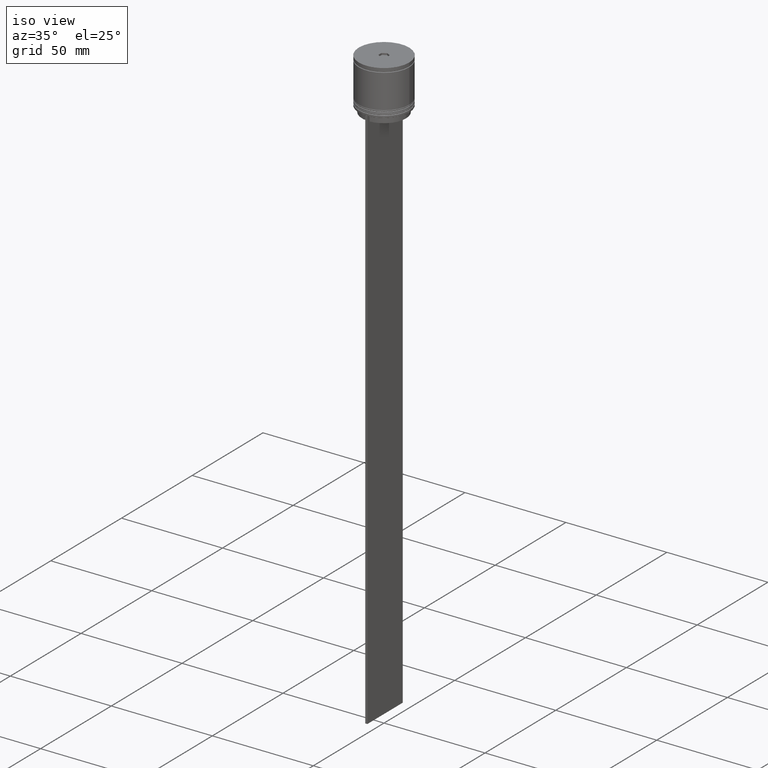
[diagram: clean part render]
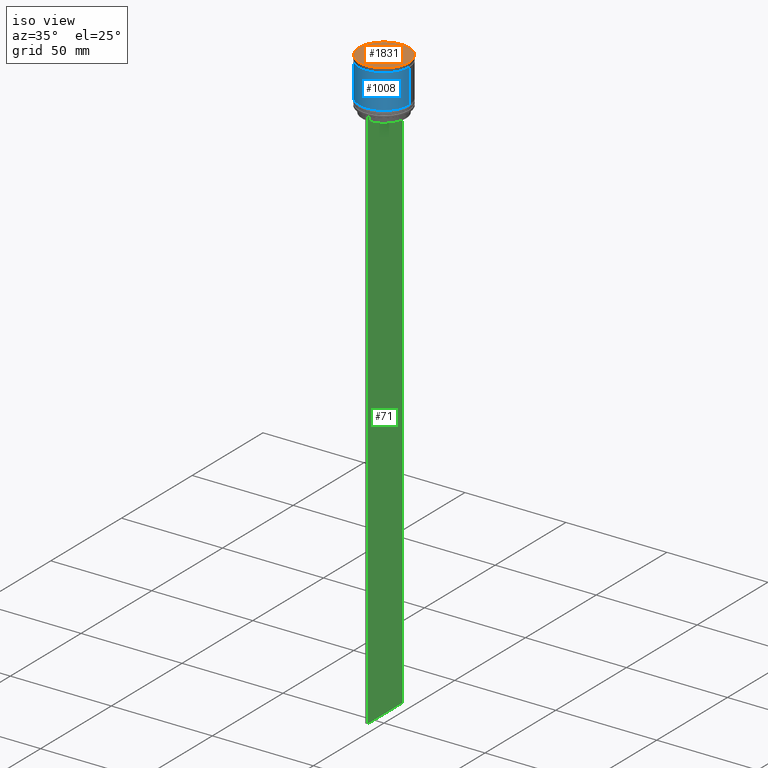
[diagram: same view with three faces highlighted in distinct colors, each labeled with its STEP entity id]
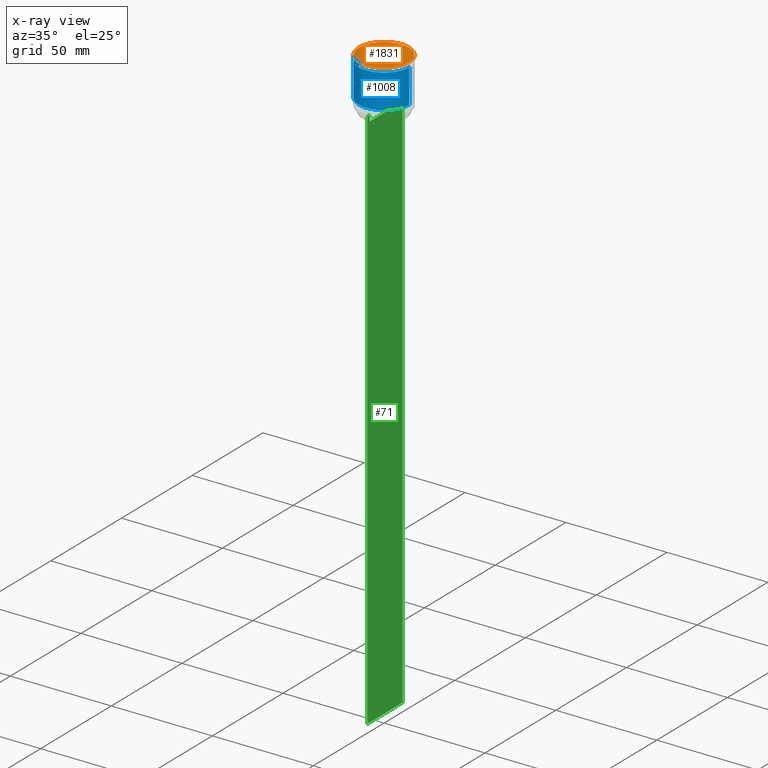
[diagram: x-ray of the same camera — body ghosted, the three highlighted faces saturated]
A machine part, iso view with three faces highlighted in distinct colors.
The next image is the same camera in x-ray (body ghosted, the three faces saturated) — at least one of them is partly hidden behind the body in this view.
Their STEP definitions:

[orange] entity #1831 — the highlighted planar face has unit normal (0, -0, 1).
#5 = EDGE_LOOP ( 'NONE', ( #1208, #28 ) ) ;
#15 = DIRECTION ( 'NONE',  ( -0.8660254037844388186, 0.4999999999999997780, 0.000000000000000000 ) ) ;
#28 = ORIENTED_EDGE ( 'NONE', *, *, #2033, .T. ) ;
#35 = VERTEX_POINT ( 'NONE', #512 ) ;
#76 = DIRECTION ( 'NONE',  ( 0.8660254037844387076, 0.4999999999999998890, 0.000000000000000000 ) ) ;
#84 = CARTESIAN_POINT ( 'NONE',  ( -2.099999999999976552, -1.212435565298201068, 0.000000000000000000 ) ) ;
#95 = CIRCLE ( 'NONE', #443, 12.39999999999999858 ) ;
#102 = CARTESIAN_POINT ( 'NONE',  ( 4.094594143581926364E-16, -2.424871130596400803, 0.000000000000000000 ) ) ;
#112 = EDGE_CURVE ( 'NONE', #371, #598, #947, .T. ) ;
#155 = DIRECTION ( 'NONE',  ( 1.000000000000000000, 0.000000000000000000, 0.000000000000000000 ) ) ;
#169 = CARTESIAN_POINT ( 'NONE',  ( -2.099999999999976552, 1.154700538379251018, 0.000000000000000000 ) ) ;
#177 = DIRECTION ( 'NONE',  ( -0.000000000000000000, -0.000000000000000000, 1.000000000000000000 ) ) ;
#186 = VERTEX_POINT ( 'NONE', #1166 ) ;
#188 = DIRECTION ( 'NONE',  ( 1.000000000000000000, 0.000000000000000000, 0.000000000000000000 ) ) ;
#206 = EDGE_CURVE ( 'NONE', #1710, #186, #1266, .T. ) ;
#244 = CARTESIAN_POINT ( 'NONE',  ( 12.39999999999999858, 0.000000000000000000, 0.000000000000000000 ) ) ;
#305 = CARTESIAN_POINT ( 'NONE',  ( 2.099999999999976552, -1.212435565298200180, 0.000000000000000000 ) ) ;
#320 = LINE ( 'NONE', #1135, #1148 ) ;
#368 = EDGE_CURVE ( 'NONE', #186, #1873, #1039, .T. ) ;
#371 = VERTEX_POINT ( 'NONE', #244 ) ;
#376 = VERTEX_POINT ( 'NONE', #84 ) ;
#438 = VECTOR ( 'NONE', #1494, 999.9999999999998863 ) ;
#443 = AXIS2_PLACEMENT_3D ( 'NONE', #1503, #1823, #540 ) ;
#459 = VECTOR ( 'NONE', #1255, 1000.000000000000000 ) ;
#461 = VECTOR ( 'NONE', #912, 1000.000000000000000 ) ;
#512 = CARTESIAN_POINT ( 'NONE',  ( -2.099999999999976552, 1.212435565298199958, 0.000000000000000000 ) ) ;
#540 = DIRECTION ( 'NONE',  ( 1.000000000000000000, 0.000000000000000000, 0.000000000000000000 ) ) ;
#563 = CARTESIAN_POINT ( 'NONE',  ( 2.099999999999976552, -1.154700538379251684, 0.000000000000000000 ) ) ;
#598 = VERTEX_POINT ( 'NONE', #1916 ) ;
#634 = FACE_BOUND ( 'NONE', #834, .T. ) ;
#658 = DIRECTION ( 'NONE',  ( 0.000000000000000000, -0.000000000000000000, 1.000000000000000000 ) ) ;
#681 = FACE_OUTER_BOUND ( 'NONE', #5, .T. ) ;
#732 = EDGE_CURVE ( 'NONE', #1873, #1773, #1348, .T. ) ;
#834 = EDGE_LOOP ( 'NONE', ( #1289, #1958, #917, #961, #1037, #1005 ) ) ;
#912 = DIRECTION ( 'NONE',  ( 0.000000000000000000, -1.000000000000000000, 0.000000000000000000 ) ) ;
#917 = ORIENTED_EDGE ( 'NONE', *, *, #1904, .T. ) ;
#947 = CIRCLE ( 'NONE', #1507, 12.39999999999999858 ) ;
#961 = ORIENTED_EDGE ( 'NONE', *, *, #1124, .T. ) ;
#1005 = ORIENTED_EDGE ( 'NONE', *, *, #368, .T. ) ;
#1037 = ORIENTED_EDGE ( 'NONE', *, *, #206, .T. ) ;
#1039 = LINE ( 'NONE', #563, #461 ) ;
#1047 = EDGE_CURVE ( 'NONE', #1773, #376, #320, .T. ) ;
#1064 = LINE ( 'NONE', #1376, #1412 ) ;
#1124 = EDGE_CURVE ( 'NONE', #35, #1710, #1064, .T. ) ;
#1135 = CARTESIAN_POINT ( 'NONE',  ( -2.049999999999987832, -1.241303078757675538, 0.000000000000000000 ) ) ;
#1140 = LINE ( 'NONE', #169, #1810 ) ;
#1148 = VECTOR ( 'NONE', #15, 1000.000000000000114 ) ;
#1166 = CARTESIAN_POINT ( 'NONE',  ( 2.099999999999976552, 1.212435565298200180, 0.000000000000000000 ) ) ;
#1167 = CARTESIAN_POINT ( 'NONE',  ( 0.000000000000000000, 0.000000000000000000, 0.000000000000000000 ) ) ;
#1208 = ORIENTED_EDGE ( 'NONE', *, *, #112, .T. ) ;
#1255 = DIRECTION ( 'NONE',  ( 0.8660254037844387076, -0.4999999999999998890, 0.000000000000000000 ) ) ;
#1266 = LINE ( 'NONE', #1924, #459 ) ;
#1289 = ORIENTED_EDGE ( 'NONE', *, *, #732, .T. ) ;
#1306 = DIRECTION ( 'NONE',  ( 0.000000000000000000, 1.000000000000000000, 0.000000000000000000 ) ) ;
#1348 = LINE ( 'NONE', #1796, #438 ) ;
#1376 = CARTESIAN_POINT ( 'NONE',  ( -0.04999999999998829686, 2.396003617136925445, 0.000000000000000000 ) ) ;
#1412 = VECTOR ( 'NONE', #76, 1000.000000000000000 ) ;
#1465 = CARTESIAN_POINT ( 'NONE',  ( 0.000000000000000000, 0.000000000000000000, 0.000000000000000000 ) ) ;
#1483 = AXIS2_PLACEMENT_3D ( 'NONE', #1465, #658, #155 ) ;
#1494 = DIRECTION ( 'NONE',  ( -0.8660254037844385966, -0.5000000000000002220, 0.000000000000000000 ) ) ;
#1503 = CARTESIAN_POINT ( 'NONE',  ( 0.000000000000000000, 0.000000000000000000, 0.000000000000000000 ) ) ;
#1507 = AXIS2_PLACEMENT_3D ( 'NONE', #1167, #177, #188 ) ;
#1710 = VERTEX_POINT ( 'NONE', #1881 ) ;
#1765 = PLANE ( 'NONE',  #1483 ) ;
#1773 = VERTEX_POINT ( 'NONE', #102 ) ;
#1796 = CARTESIAN_POINT ( 'NONE',  ( 0.04999999999998844258, -2.396003617136926334, 0.000000000000000000 ) ) ;
#1810 = VECTOR ( 'NONE', #1306, 1000.000000000000000 ) ;
#1823 = DIRECTION ( 'NONE',  ( -0.000000000000000000, -0.000000000000000000, 1.000000000000000000 ) ) ;
#1831 = ADVANCED_FACE ( 'NONE', ( #681, #634 ), #1765, .T. ) ;
#1873 = VERTEX_POINT ( 'NONE', #305 ) ;
#1881 = CARTESIAN_POINT ( 'NONE',  ( 1.843405708750384860E-16, 2.424871130596400359, 0.000000000000000000 ) ) ;
#1904 = EDGE_CURVE ( 'NONE', #376, #35, #1140, .T. ) ;
#1916 = CARTESIAN_POINT ( 'NONE',  ( -12.39999999999999858, 1.524685264938454448E-15, 0.000000000000000000 ) ) ;
#1924 = CARTESIAN_POINT ( 'NONE',  ( 2.049999999999987832, 1.241303078757674649, 0.000000000000000000 ) ) ;
#1958 = ORIENTED_EDGE ( 'NONE', *, *, #1047, .T. ) ;
#2033 = EDGE_CURVE ( 'NONE', #598, #371, #95, .T. ) ;

[blue] entity #1008 — the highlighted cylindrical surface (edge-blend (fillet) strip) has radius 12.5 mm, axis along (-0, -0, 1).
#25 = DIRECTION ( 'NONE',  ( -0.000000000000000000, -0.000000000000000000, 1.000000000000000000 ) ) ;
#77 = ORIENTED_EDGE ( 'NONE', *, *, #964, .T. ) ;
#100 = VERTEX_POINT ( 'NONE', #124 ) ;
#124 = CARTESIAN_POINT ( 'NONE',  ( -12.50000000000000355, 1.530808498934191916E-15, -19.00000000000000000 ) ) ;
#161 = CARTESIAN_POINT ( 'NONE',  ( 0.000000000000000000, 0.000000000000000000, 0.000000000000000000 ) ) ;
#187 = DIRECTION ( 'NONE',  ( 1.000000000000000000, 0.000000000000000000, 0.000000000000000000 ) ) ;
#214 = DIRECTION ( 'NONE',  ( -0.000000000000000000, -0.000000000000000000, 1.000000000000000000 ) ) ;
#315 = DIRECTION ( 'NONE',  ( 1.000000000000000000, 0.000000000000000000, 0.000000000000000000 ) ) ;
#321 = CARTESIAN_POINT ( 'NONE',  ( 12.49999999999999645, 0.000000000000000000, -2.199999999999994404 ) ) ;
#336 = DIRECTION ( 'NONE',  ( -0.000000000000000000, -0.000000000000000000, 1.000000000000000000 ) ) ;
#357 = FACE_OUTER_BOUND ( 'NONE', #1344, .T. ) ;
#381 = EDGE_CURVE ( 'NONE', #627, #550, #584, .T. ) ;
#520 = ORIENTED_EDGE ( 'NONE', *, *, #620, .F. ) ;
#544 = CARTESIAN_POINT ( 'NONE',  ( 12.50000000000000000, 0.000000000000000000, 0.000000000000000000 ) ) ;
#550 = VERTEX_POINT ( 'NONE', #321 ) ;
#572 = AXIS2_PLACEMENT_3D ( 'NONE', #1299, #1593, #1165 ) ;
#584 = LINE ( 'NONE', #544, #1109 ) ;
#589 = VERTEX_POINT ( 'NONE', #1283 ) ;
#613 = ORIENTED_EDGE ( 'NONE', *, *, #381, .T. ) ;
#620 = EDGE_CURVE ( 'NONE', #589, #550, #1730, .T. ) ;
#627 = VERTEX_POINT ( 'NONE', #1754 ) ;
#678 = CIRCLE ( 'NONE', #572, 12.50000000000000178 ) ;
#808 = AXIS2_PLACEMENT_3D ( 'NONE', #161, #25, #187 ) ;
#964 = EDGE_CURVE ( 'NONE', #100, #627, #678, .T. ) ;
#1004 = EDGE_CURVE ( 'NONE', #100, #589, #1793, .T. ) ;
#1008 = ADVANCED_FACE ( 'NONE', ( #357 ), #1009, .T. ) ;
#1009 = CYLINDRICAL_SURFACE ( 'NONE', #808, 12.50000000000000000 ) ;
#1109 = VECTOR ( 'NONE', #214, 1000.000000000000000 ) ;
#1165 = DIRECTION ( 'NONE',  ( 1.000000000000000000, 0.000000000000000000, 0.000000000000000000 ) ) ;
#1283 = CARTESIAN_POINT ( 'NONE',  ( -12.49999999999999645, 1.530808498934191324E-15, -2.199999999999994404 ) ) ;
#1299 = CARTESIAN_POINT ( 'NONE',  ( 0.000000000000000000, 0.000000000000000000, -19.00000000000000000 ) ) ;
#1311 = CARTESIAN_POINT ( 'NONE',  ( -12.50000000000000000, 1.530808498934191521E-15, 0.000000000000000000 ) ) ;
#1344 = EDGE_LOOP ( 'NONE', ( #1544, #77, #613, #520 ) ) ;
#1345 = VECTOR ( 'NONE', #1626, 1000.000000000000000 ) ;
#1544 = ORIENTED_EDGE ( 'NONE', *, *, #1004, .F. ) ;
#1593 = DIRECTION ( 'NONE',  ( -0.000000000000000000, -0.000000000000000000, 1.000000000000000000 ) ) ;
#1626 = DIRECTION ( 'NONE',  ( -0.000000000000000000, -0.000000000000000000, 1.000000000000000000 ) ) ;
#1636 = AXIS2_PLACEMENT_3D ( 'NONE', #1728, #336, #315 ) ;
#1728 = CARTESIAN_POINT ( 'NONE',  ( 0.000000000000000000, 0.000000000000000000, -2.199999999999994404 ) ) ;
#1730 = CIRCLE ( 'NONE', #1636, 12.49999999999999645 ) ;
#1754 = CARTESIAN_POINT ( 'NONE',  ( 12.50000000000000178, 0.000000000000000000, -19.00000000000000000 ) ) ;
#1793 = LINE ( 'NONE', #1311, #1345 ) ;

[green] entity #71 — the highlighted planar face has unit normal (-1, 0, 0).
#4 = DIRECTION ( 'NONE',  ( 0.000000000000000000, -1.000000000000000000, 0.000000000000000000 ) ) ;
#41 = LINE ( 'NONE', #902, #954 ) ;
#45 = CARTESIAN_POINT ( 'NONE',  ( 0.5000000000000000000, -12.49999999999999289, -294.5000000000000568 ) ) ;
#54 = VECTOR ( 'NONE', #1681, 1000.000000000000000 ) ;
#56 = DIRECTION ( 'NONE',  ( 0.000000000000000000, -1.000000000000000000, 0.000000000000000000 ) ) ;
#59 = EDGE_CURVE ( 'NONE', #1995, #148, #1177, .T. ) ;
#61 = CARTESIAN_POINT ( 'NONE',  ( 0.5000000000000000000, 12.38991525394746596, -22.50000000000000000 ) ) ;
#68 = LINE ( 'NONE', #1038, #1517 ) ;
#71 = ADVANCED_FACE ( 'NONE', ( #1975 ), #1714, .F. ) ;
#108 = B_SPLINE_CURVE_WITH_KNOTS ( 'NONE', 3,
 ( #1365, #1962, #562, #543 ),
 .UNSPECIFIED., .F., .F.,
 ( 4, 4 ),
 ( 0.01935560801904635808, 0.02006307108468587813 ),
 .UNSPECIFIED. ) ;
#148 = VERTEX_POINT ( 'NONE', #526 ) ;
#151 = VECTOR ( 'NONE', #577, 1000.000000000000000 ) ;
#210 = DIRECTION ( 'NONE',  ( 0.000000000000000000, -1.000000000000000000, 0.000000000000000000 ) ) ;
#218 = CARTESIAN_POINT ( 'NONE',  ( 0.5000000000000000000, -11.38902980942626897, -22.50000000000000000 ) ) ;
#248 = VERTEX_POINT ( 'NONE', #655 ) ;
#254 = CARTESIAN_POINT ( 'NONE',  ( 0.5000000000000000000, 10.88852607105296855, -25.50000000000000000 ) ) ;
#258 = ORIENTED_EDGE ( 'NONE', *, *, #1587, .T. ) ;
#283 = EDGE_CURVE ( 'NONE', #629, #1427, #590, .T. ) ;
#300 = VERTEX_POINT ( 'NONE', #1561 ) ;
#314 = ORIENTED_EDGE ( 'NONE', *, *, #283, .T. ) ;
#326 = CARTESIAN_POINT ( 'NONE',  ( 0.5000000000000000000, -12.38991525394746596, -22.50000000000000000 ) ) ;
#344 = CARTESIAN_POINT ( 'NONE',  ( 0.5000000000000000000, -12.49999999999999289, -22.50000000000000000 ) ) ;
#352 = CARTESIAN_POINT ( 'NONE',  ( 0.5000000000000000000, -12.49999999999999289, -22.50000000000000000 ) ) ;
#366 = VERTEX_POINT ( 'NONE', #254 ) ;
#392 = ORIENTED_EDGE ( 'NONE', *, *, #759, .T. ) ;
#410 = VECTOR ( 'NONE', #4, 1000.000000000000000 ) ;
#418 = VECTOR ( 'NONE', #1926, 1000.000000000000000 ) ;
#432 = ORIENTED_EDGE ( 'NONE', *, *, #1864, .F. ) ;
#478 = ORIENTED_EDGE ( 'NONE', *, *, #558, .T. ) ;
#492 = CARTESIAN_POINT ( 'NONE',  ( 0.5000000000000000000, 12.50000000000000711, 2.519992006393609874 ) ) ;
#504 = LINE ( 'NONE', #352, #418 ) ;
#522 = CARTESIAN_POINT ( 'NONE',  ( 0.5000000000000000000, -10.88852607105297032, -22.99999999999999645 ) ) ;
#526 = CARTESIAN_POINT ( 'NONE',  ( 0.5000000000000000000, 12.50000000000000711, -294.5000000000000568 ) ) ;
#535 = LINE ( 'NONE', #1920, #410 ) ;
#543 = CARTESIAN_POINT ( 'NONE',  ( 0.5000000000000000000, 10.88852607105297032, -22.99999999999999645 ) ) ;
#557 = EDGE_CURVE ( 'NONE', #1226, #1510, #535, .T. ) ;
#558 = EDGE_CURVE ( 'NONE', #1890, #300, #1133, .T. ) ;
#562 = CARTESIAN_POINT ( 'NONE',  ( 0.5000000000000000000, 11.05536450345590715, -22.83333719074559554 ) ) ;
#577 = DIRECTION ( 'NONE',  ( -0.000000000000000000, -0.000000000000000000, 1.000000000000000000 ) ) ;
#590 = LINE ( 'NONE', #1532, #151 ) ;
#599 = ORIENTED_EDGE ( 'NONE', *, *, #829, .T. ) ;
#629 = VERTEX_POINT ( 'NONE', #1429 ) ;
#655 = CARTESIAN_POINT ( 'NONE',  ( 0.5000000000000000000, 12.50000000000000711, -22.50000000000000000 ) ) ;
#670 = EDGE_LOOP ( 'NONE', ( #1885, #1104, #258, #932, #314, #599, #392, #478, #2013, #1261, #432, #1027 ) ) ;
#679 = CARTESIAN_POINT ( 'NONE',  ( 0.5000000000000000000, -12.49999999999999289, -22.50000000000000000 ) ) ;
#752 = DIRECTION ( 'NONE',  ( -1.000000000000000000, 0.000000000000000000, 0.000000000000000000 ) ) ;
#759 = EDGE_CURVE ( 'NONE', #2046, #1890, #1193, .T. ) ;
#817 = VECTOR ( 'NONE', #1474, 1000.000000000000000 ) ;
#829 = EDGE_CURVE ( 'NONE', #1427, #2046, #867, .T. ) ;
#848 = CARTESIAN_POINT ( 'NONE',  ( 0.5000000000000000000, -11.05536450423839412, -22.83333718996392747 ) ) ;
#867 = B_SPLINE_CURVE_WITH_KNOTS ( 'NONE', 3,
 ( #1011, #848, #1231, #1580 ),
 .UNSPECIFIED., .F., .F.,
 ( 4, 4 ),
 ( 0.05041323384703231408, 0.05112713601261610619 ),
 .UNSPECIFIED. ) ;
#879 = LINE ( 'NONE', #1523, #1575 ) ;
#902 = CARTESIAN_POINT ( 'NONE',  ( 0.5000000000000000000, 10.88852607105297032, 0.000000000000000000 ) ) ;
#932 = ORIENTED_EDGE ( 'NONE', *, *, #1565, .T. ) ;
#954 = VECTOR ( 'NONE', #1992, 1000.000000000000000 ) ;
#995 = DIRECTION ( 'NONE',  ( 0.000000000000000000, -1.000000000000000000, 0.000000000000000000 ) ) ;
#1011 = CARTESIAN_POINT ( 'NONE',  ( 0.5000000000000000000, -10.88852607105297032, -22.99999999999999645 ) ) ;
#1027 = ORIENTED_EDGE ( 'NONE', *, *, #1889, .T. ) ;
#1038 = CARTESIAN_POINT ( 'NONE',  ( 0.5000000000000000000, 10.90000000000000924, -25.50000000000000000 ) ) ;
#1101 = CARTESIAN_POINT ( 'NONE',  ( 0.5000000000000000000, -12.49999999999999289, 2.519992006393609874 ) ) ;
#1104 = ORIENTED_EDGE ( 'NONE', *, *, #1602, .T. ) ;
#1133 = LINE ( 'NONE', #344, #1571 ) ;
#1138 = EDGE_CURVE ( 'NONE', #300, #1995, #879, .T. ) ;
#1177 = LINE ( 'NONE', #45, #54 ) ;
#1193 = LINE ( 'NONE', #679, #1574 ) ;
#1226 = VERTEX_POINT ( 'NONE', #61 ) ;
#1231 = CARTESIAN_POINT ( 'NONE',  ( 0.5000000000000000000, -11.22219891450653151, -22.66667035398018726 ) ) ;
#1261 = ORIENTED_EDGE ( 'NONE', *, *, #59, .T. ) ;
#1296 = LINE ( 'NONE', #492, #817 ) ;
#1331 = CARTESIAN_POINT ( 'NONE',  ( 0.5000000000000000000, 10.88852607105297032, -22.99999999999999645 ) ) ;
#1365 = CARTESIAN_POINT ( 'NONE',  ( 0.5000000000000000000, 11.38902980942626897, -22.50000000000000000 ) ) ;
#1427 = VERTEX_POINT ( 'NONE', #522 ) ;
#1429 = CARTESIAN_POINT ( 'NONE',  ( 0.5000000000000000000, -10.88852607105296855, -25.50000000000000000 ) ) ;
#1474 = DIRECTION ( 'NONE',  ( 0.000000000000000000, 0.000000000000000000, -1.000000000000000000 ) ) ;
#1508 = DIRECTION ( 'NONE',  ( 0.000000000000000000, 0.000000000000000000, -1.000000000000000000 ) ) ;
#1510 = VERTEX_POINT ( 'NONE', #1906 ) ;
#1517 = VECTOR ( 'NONE', #56, 1000.000000000000000 ) ;
#1523 = CARTESIAN_POINT ( 'NONE',  ( 0.5000000000000000000, -12.49999999999999289, 2.519992006393609874 ) ) ;
#1532 = CARTESIAN_POINT ( 'NONE',  ( 0.5000000000000000000, -10.88852607105297032, 0.000000000000000000 ) ) ;
#1561 = CARTESIAN_POINT ( 'NONE',  ( 0.5000000000000000000, -12.49999999999999289, -22.50000000000000000 ) ) ;
#1565 = EDGE_CURVE ( 'NONE', #366, #629, #68, .T. ) ;
#1571 = VECTOR ( 'NONE', #995, 1000.000000000000000 ) ;
#1574 = VECTOR ( 'NONE', #210, 1000.000000000000000 ) ;
#1575 = VECTOR ( 'NONE', #1508, 1000.000000000000000 ) ;
#1580 = CARTESIAN_POINT ( 'NONE',  ( 0.5000000000000000000, -11.38902980942626897, -22.50000000000000000 ) ) ;
#1587 = EDGE_CURVE ( 'NONE', #1637, #366, #41, .T. ) ;
#1602 = EDGE_CURVE ( 'NONE', #1510, #1637, #108, .T. ) ;
#1637 = VERTEX_POINT ( 'NONE', #1331 ) ;
#1681 = DIRECTION ( 'NONE',  ( 0.000000000000000000, 1.000000000000000000, 0.000000000000000000 ) ) ;
#1714 = PLANE ( 'NONE',  #1763 ) ;
#1723 = DIRECTION ( 'NONE',  ( 0.000000000000000000, 0.000000000000000000, 1.000000000000000000 ) ) ;
#1763 = AXIS2_PLACEMENT_3D ( 'NONE', #1101, #752, #1723 ) ;
#1812 = CARTESIAN_POINT ( 'NONE',  ( 0.5000000000000000000, -12.49999999999999289, -294.5000000000000568 ) ) ;
#1864 = EDGE_CURVE ( 'NONE', #248, #148, #1296, .T. ) ;
#1885 = ORIENTED_EDGE ( 'NONE', *, *, #557, .T. ) ;
#1889 = EDGE_CURVE ( 'NONE', #248, #1226, #504, .T. ) ;
#1890 = VERTEX_POINT ( 'NONE', #326 ) ;
#1906 = CARTESIAN_POINT ( 'NONE',  ( 0.5000000000000000000, 11.38902980942626897, -22.50000000000000000 ) ) ;
#1920 = CARTESIAN_POINT ( 'NONE',  ( 0.5000000000000000000, -12.49999999999999289, -22.50000000000000000 ) ) ;
#1926 = DIRECTION ( 'NONE',  ( 0.000000000000000000, -1.000000000000000000, 0.000000000000000000 ) ) ;
#1962 = CARTESIAN_POINT ( 'NONE',  ( 0.5000000000000000000, 11.22219891375843126, -22.66667035472756808 ) ) ;
#1975 = FACE_OUTER_BOUND ( 'NONE', #670, .T. ) ;
#1992 = DIRECTION ( 'NONE',  ( 0.000000000000000000, 0.000000000000000000, -1.000000000000000000 ) ) ;
#1995 = VERTEX_POINT ( 'NONE', #1812 ) ;
#2013 = ORIENTED_EDGE ( 'NONE', *, *, #1138, .T. ) ;
#2046 = VERTEX_POINT ( 'NONE', #218 ) ;